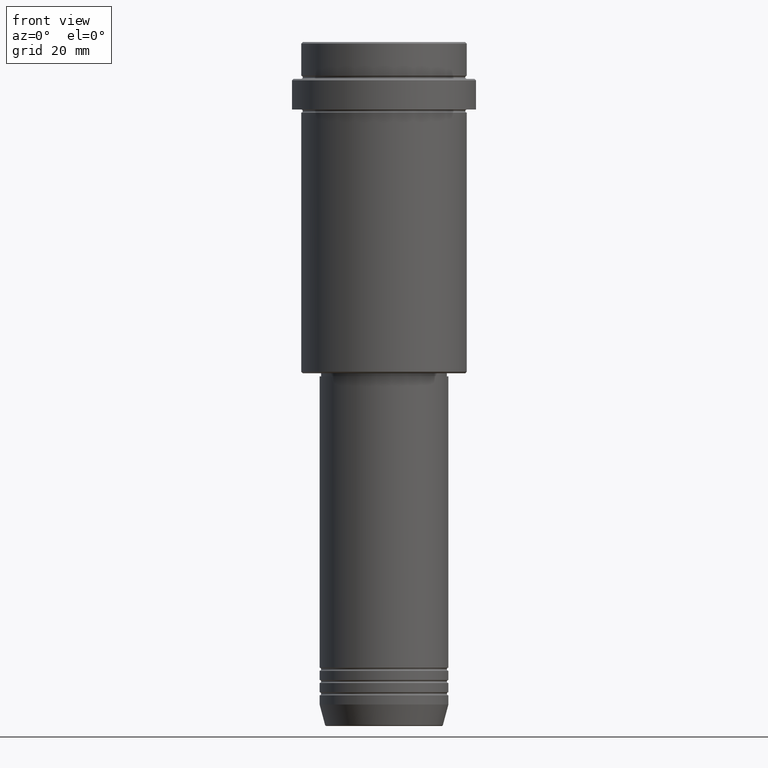
[diagram: clean part render]
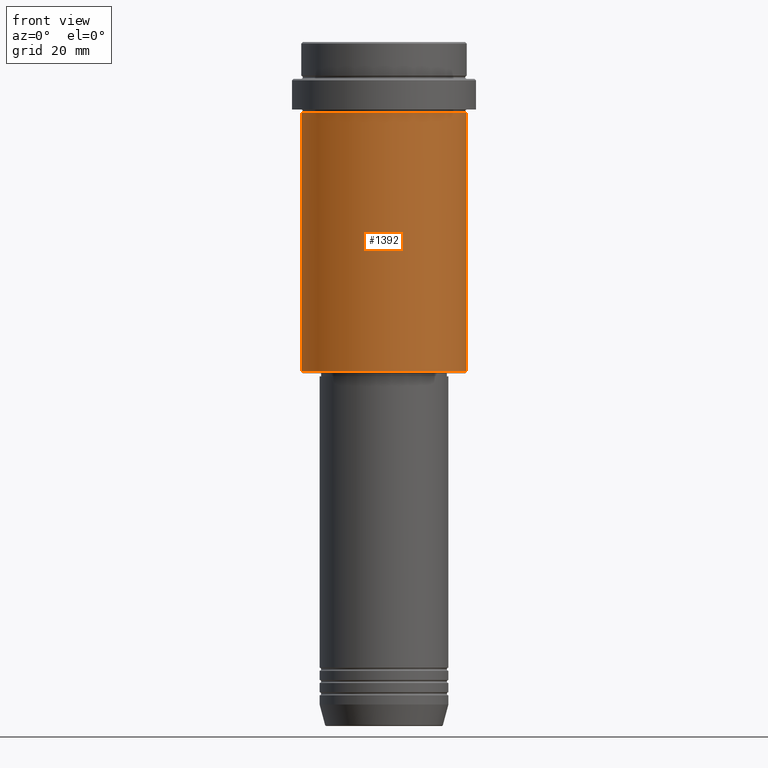
[diagram: same view with one face highlighted and labeled with its STEP entity id]
A machine part, front view. The second image highlights one B-rep face of the part: STEP entity #1392.
In plain terms, the highlighted cylindrical surface (partial cylindrical patch) has radius 27 mm, axis along (-0, -0, 1).
Its self-contained STEP definition (entity closure, byte-faithful):
#20 = VECTOR ( 'NONE', #903, 1000.000000000000000 ) ;
#129 = DIRECTION ( 'NONE',  ( -1.000000000000000000, 0.000000000000000000, 0.000000000000000000 ) ) ;
#145 = LINE ( 'NONE', #927, #20 ) ;
#150 = ORIENTED_EDGE ( 'NONE', *, *, #1229, .T. ) ;
#168 = VERTEX_POINT ( 'NONE', #1217 ) ;
#237 = CARTESIAN_POINT ( 'NONE',  ( 0.000000000000000000, 0.000000000000000000, 0.000000000000000000 ) ) ;
#271 = CIRCLE ( 'NONE', #1078, 26.99999999999999645 ) ;
#278 = ORIENTED_EDGE ( 'NONE', *, *, #411, .T. ) ;
#284 = EDGE_LOOP ( 'NONE', ( #626, #278, #150, #324 ) ) ;
#324 = ORIENTED_EDGE ( 'NONE', *, *, #1018, .F. ) ;
#357 = CARTESIAN_POINT ( 'NONE',  ( -26.99999999999999645, 3.306546357697853339E-15, -107.5000000000000142 ) ) ;
#399 = VERTEX_POINT ( 'NONE', #357 ) ;
#404 = EDGE_CURVE ( 'NONE', #399, #643, #145, .T. ) ;
#411 = EDGE_CURVE ( 'NONE', #399, #1167, #526, .T. ) ;
#449 = DIRECTION ( 'NONE',  ( -0.000000000000000000, -0.000000000000000000, 1.000000000000000000 ) ) ;
#512 = DIRECTION ( 'NONE',  ( -0.000000000000000000, -0.000000000000000000, 1.000000000000000000 ) ) ;
#526 = CIRCLE ( 'NONE', #1188, 26.99999999999999645 ) ;
#539 = CARTESIAN_POINT ( 'NONE',  ( -26.99999999999999645, 3.306546357697853339E-15, -23.00000000000000000 ) ) ;
#626 = ORIENTED_EDGE ( 'NONE', *, *, #404, .F. ) ;
#643 = VERTEX_POINT ( 'NONE', #539 ) ;
#699 = DIRECTION ( 'NONE',  ( -0.000000000000000000, -0.000000000000000000, 1.000000000000000000 ) ) ;
#702 = FACE_OUTER_BOUND ( 'NONE', #284, .T. ) ;
#761 = VECTOR ( 'NONE', #512, 1000.000000000000000 ) ;
#896 = CARTESIAN_POINT ( 'NONE',  ( 0.000000000000000000, 0.000000000000000000, -107.5000000000000142 ) ) ;
#903 = DIRECTION ( 'NONE',  ( -0.000000000000000000, -0.000000000000000000, 1.000000000000000000 ) ) ;
#921 = CARTESIAN_POINT ( 'NONE',  ( 0.000000000000000000, 0.000000000000000000, -23.00000000000000000 ) ) ;
#927 = CARTESIAN_POINT ( 'NONE',  ( -26.99999999999999645, 3.306546357697853339E-15, 0.000000000000000000 ) ) ;
#969 = AXIS2_PLACEMENT_3D ( 'NONE', #237, #1235, #1154 ) ;
#970 = LINE ( 'NONE', #1295, #761 ) ;
#1018 = EDGE_CURVE ( 'NONE', #643, #168, #271, .T. ) ;
#1078 = AXIS2_PLACEMENT_3D ( 'NONE', #921, #699, #1358 ) ;
#1154 = DIRECTION ( 'NONE',  ( 1.000000000000000000, 0.000000000000000000, 0.000000000000000000 ) ) ;
#1164 = CARTESIAN_POINT ( 'NONE',  ( 26.99999999999999645, 0.000000000000000000, -107.5000000000000142 ) ) ;
#1167 = VERTEX_POINT ( 'NONE', #1164 ) ;
#1188 = AXIS2_PLACEMENT_3D ( 'NONE', #896, #449, #129 ) ;
#1217 = CARTESIAN_POINT ( 'NONE',  ( 26.99999999999999645, 0.000000000000000000, -23.00000000000000000 ) ) ;
#1229 = EDGE_CURVE ( 'NONE', #1167, #168, #970, .T. ) ;
#1235 = DIRECTION ( 'NONE',  ( -0.000000000000000000, -0.000000000000000000, 1.000000000000000000 ) ) ;
#1295 = CARTESIAN_POINT ( 'NONE',  ( 26.99999999999999645, 0.000000000000000000, 0.000000000000000000 ) ) ;
#1354 = CYLINDRICAL_SURFACE ( 'NONE', #969, 26.99999999999999645 ) ;
#1358 = DIRECTION ( 'NONE',  ( 1.000000000000000000, 0.000000000000000000, 0.000000000000000000 ) ) ;
#1392 = ADVANCED_FACE ( 'NONE', ( #702 ), #1354, .T. ) ;